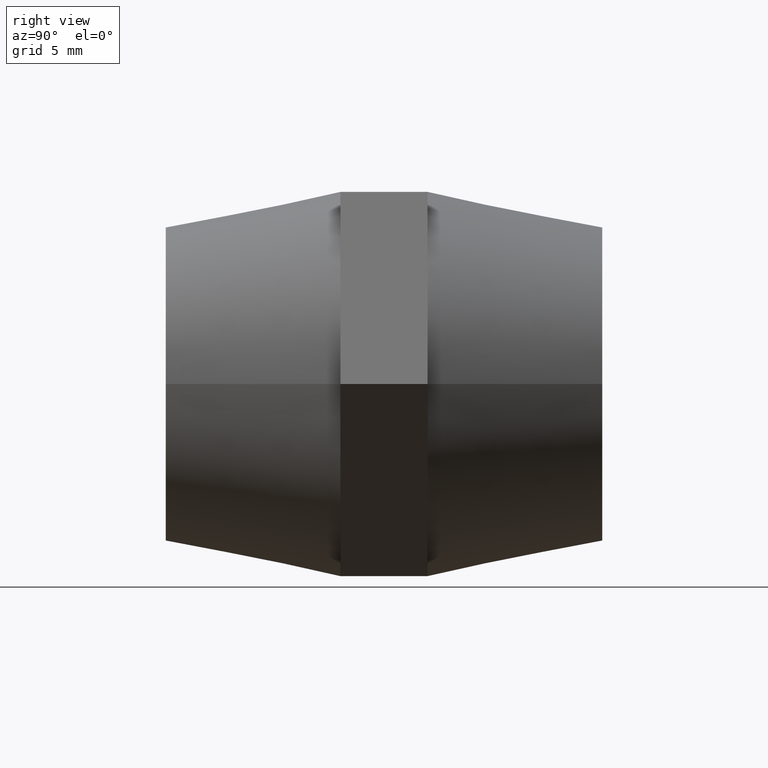
[diagram: clean part render]
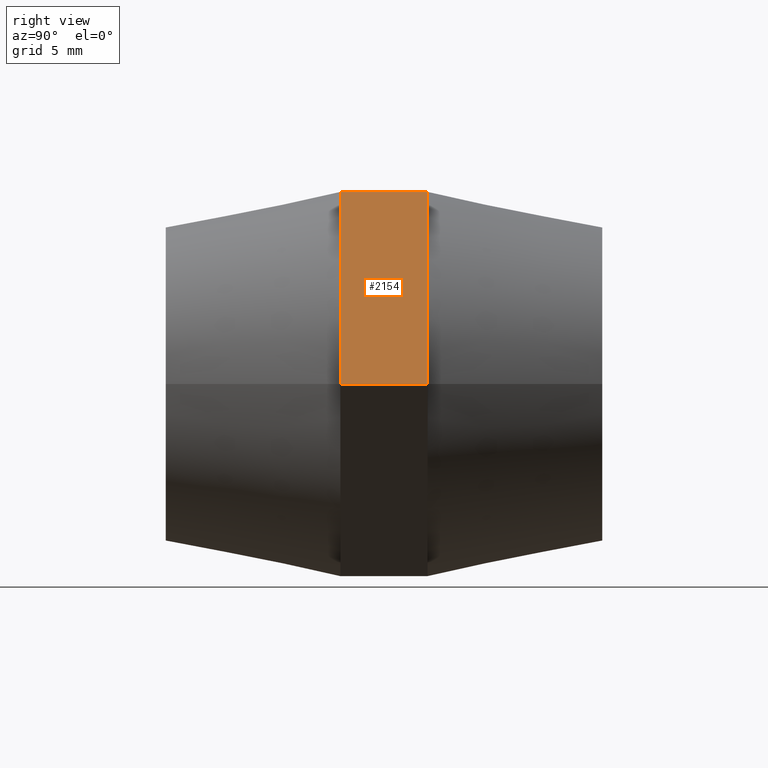
[diagram: same view with one face highlighted and labeled with its STEP entity id]
A machine part, right view. The second image highlights one B-rep face of the part: STEP entity #2154.
In plain terms, the highlighted planar face has unit normal (-0.866, 0, -0.5).
Its self-contained STEP definition (entity closure, byte-faithful):
#163 = CARTESIAN_POINT ( 'NONE',  ( 6.350852961085890600, 2.500000000000000000, 11.00000000000000000 ) ) ;
#280 = DIRECTION ( 'NONE',  ( 0.4999999999999998900, 0.0000000000000000000, -0.8660254037844387100 ) ) ;
#287 = LINE ( 'NONE', #866, #649 ) ;
#342 = LINE ( 'NONE', #3532, #3034 ) ;
#402 = ORIENTED_EDGE ( 'NONE', *, *, #3662, .T. ) ;
#438 = CARTESIAN_POINT ( 'NONE',  ( 6.350852961085890600, 2.500000000000000000, 11.00000000000000000 ) ) ;
#454 = CARTESIAN_POINT ( 'NONE',  ( 6.350852961085890600, -2.500000000000000000, 11.00000000000000000 ) ) ;
#530 = CARTESIAN_POINT ( 'NONE',  ( 6.350852961085890600, 2.500000000000000000, 11.00000000000000000 ) ) ;
#582 = VERTEX_POINT ( 'NONE', #2719 ) ;
#649 = VECTOR ( 'NONE', #1451, 1000.000000000000000 ) ;
#749 = CARTESIAN_POINT ( 'NONE',  ( 6.350852961085890600, -2.500000000000000000, 11.00000000000000000 ) ) ;
#866 = CARTESIAN_POINT ( 'NONE',  ( 6.350852961085890600, -2.500000000000000000, 11.00000000000000000 ) ) ;
#981 = EDGE_LOOP ( 'NONE', ( #402, #2869, #2472, #2764, #1196, #2899 ) ) ;
#991 = VECTOR ( 'NONE', #2222, 1000.000000000000000 ) ;
#1045 = LINE ( 'NONE', #2607, #3100 ) ;
#1065 = DIRECTION ( 'NONE',  ( -0.8660254037844387100, 0.0000000000000000000, -0.4999999999999998900 ) ) ;
#1103 = EDGE_CURVE ( 'NONE', #582, #2452, #342, .T. ) ;
#1175 = DIRECTION ( 'NONE',  ( 0.0000000000000000000, -1.000000000000000000, 0.0000000000000000000 ) ) ;
#1196 = ORIENTED_EDGE ( 'NONE', *, *, #2389, .F. ) ;
#1336 = VERTEX_POINT ( 'NONE', #2450 ) ;
#1451 = DIRECTION ( 'NONE',  ( 0.4999999999999998900, 0.0000000000000000000, -0.8660254037844387100 ) ) ;
#1474 = EDGE_CURVE ( 'NONE', #1336, #2452, #2645, .T. ) ;
#1543 = AXIS2_PLACEMENT_3D ( 'NONE', #3109, #1065, #3092 ) ;
#1662 = CARTESIAN_POINT ( 'NONE',  ( 12.70170592217176000, -2.500000000000000000, -2.884158672701469700E-015 ) ) ;
#1794 = EDGE_CURVE ( 'NONE', #3060, #582, #1045, .T. ) ;
#1958 = LINE ( 'NONE', #438, #2054 ) ;
#2054 = VECTOR ( 'NONE', #3084, 1000.000000000000000 ) ;
#2154 = ADVANCED_FACE ( 'NONE', ( #3475 ), #2817, .F. ) ;
#2222 = DIRECTION ( 'NONE',  ( 0.4999999999999998900, 0.0000000000000000000, -0.8660254037844387100 ) ) ;
#2389 = EDGE_CURVE ( 'NONE', #3436, #3060, #1958, .T. ) ;
#2450 = CARTESIAN_POINT ( 'NONE',  ( 9.526279441628831900, -2.500000000000000000, 5.500000000000000000 ) ) ;
#2452 = VERTEX_POINT ( 'NONE', #1662 ) ;
#2472 = ORIENTED_EDGE ( 'NONE', *, *, #1103, .F. ) ;
#2581 = DIRECTION ( 'NONE',  ( 0.0000000000000000000, -1.000000000000000000, 0.0000000000000000000 ) ) ;
#2607 = CARTESIAN_POINT ( 'NONE',  ( 6.350852961085890600, 2.500000000000000000, 11.00000000000000000 ) ) ;
#2645 = LINE ( 'NONE', #749, #991 ) ;
#2719 = CARTESIAN_POINT ( 'NONE',  ( 12.70170592217176000, 2.500000000000000000, -2.884158672701469700E-015 ) ) ;
#2764 = ORIENTED_EDGE ( 'NONE', *, *, #1794, .F. ) ;
#2777 = EDGE_CURVE ( 'NONE', #3436, #3341, #3335, .T. ) ;
#2817 = PLANE ( 'NONE',  #1543 ) ;
#2869 = ORIENTED_EDGE ( 'NONE', *, *, #1474, .T. ) ;
#2899 = ORIENTED_EDGE ( 'NONE', *, *, #2777, .T. ) ;
#3034 = VECTOR ( 'NONE', #1175, 1000.000000000000000 ) ;
#3060 = VERTEX_POINT ( 'NONE', #3597 ) ;
#3084 = DIRECTION ( 'NONE',  ( 0.4999999999999998900, 0.0000000000000000000, -0.8660254037844387100 ) ) ;
#3092 = DIRECTION ( 'NONE',  ( -0.4999999999999998900, 0.0000000000000000000, 0.8660254037844387100 ) ) ;
#3100 = VECTOR ( 'NONE', #280, 1000.000000000000000 ) ;
#3109 = CARTESIAN_POINT ( 'NONE',  ( 6.350852961085890600, 2.500000000000000000, 11.00000000000000000 ) ) ;
#3335 = LINE ( 'NONE', #530, #3794 ) ;
#3341 = VERTEX_POINT ( 'NONE', #454 ) ;
#3436 = VERTEX_POINT ( 'NONE', #163 ) ;
#3475 = FACE_OUTER_BOUND ( 'NONE', #981, .T. ) ;
#3532 = CARTESIAN_POINT ( 'NONE',  ( 12.70170592217176000, 2.500000000000000000, -2.884158672701469700E-015 ) ) ;
#3597 = CARTESIAN_POINT ( 'NONE',  ( 9.526279441628831900, 2.500000000000000000, 5.500000000000000000 ) ) ;
#3662 = EDGE_CURVE ( 'NONE', #3341, #1336, #287, .T. ) ;
#3794 = VECTOR ( 'NONE', #2581, 1000.000000000000000 ) ;